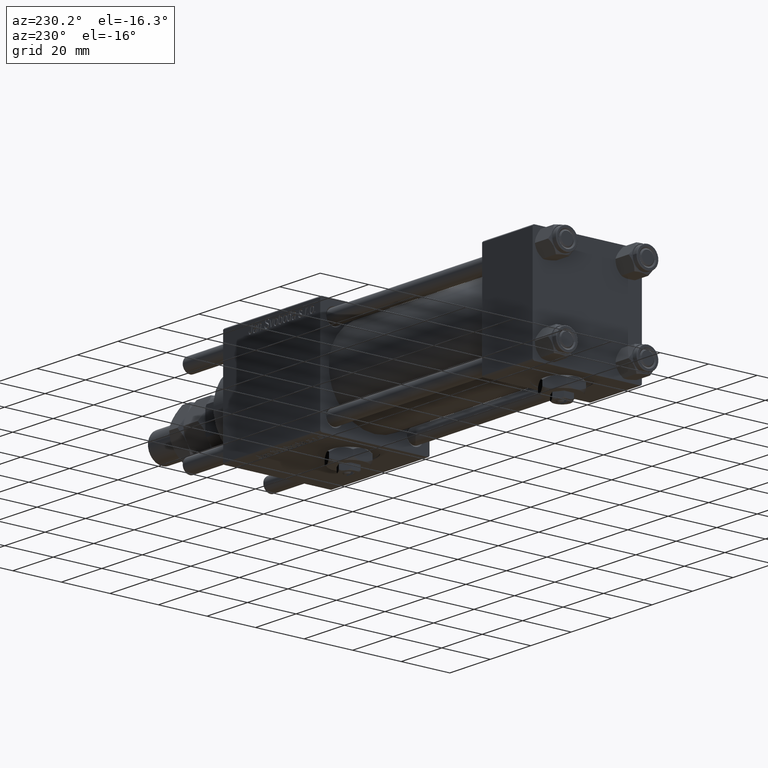
[diagram: clean part render]
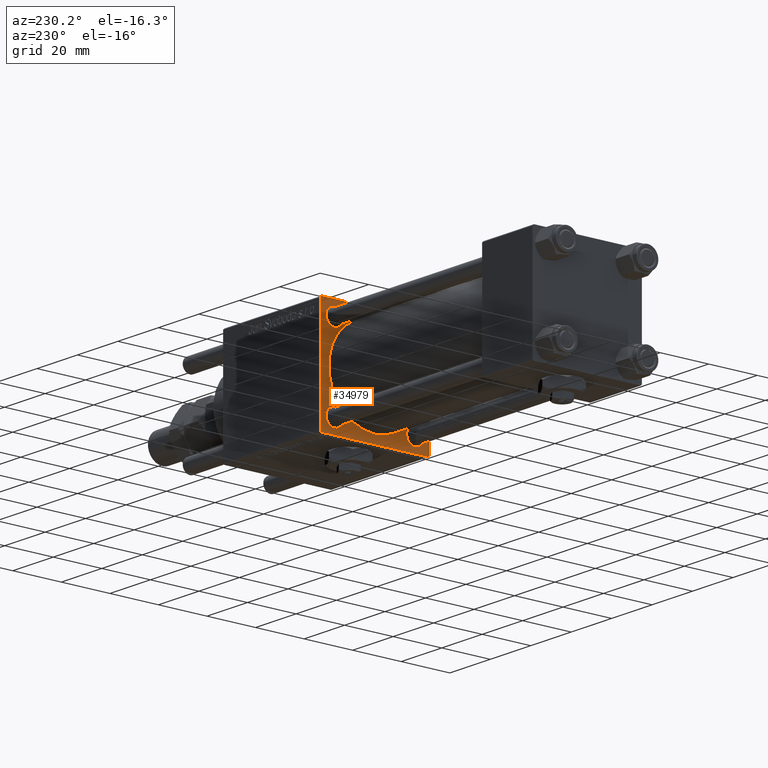
[diagram: same view with one face highlighted and labeled with its STEP entity id]
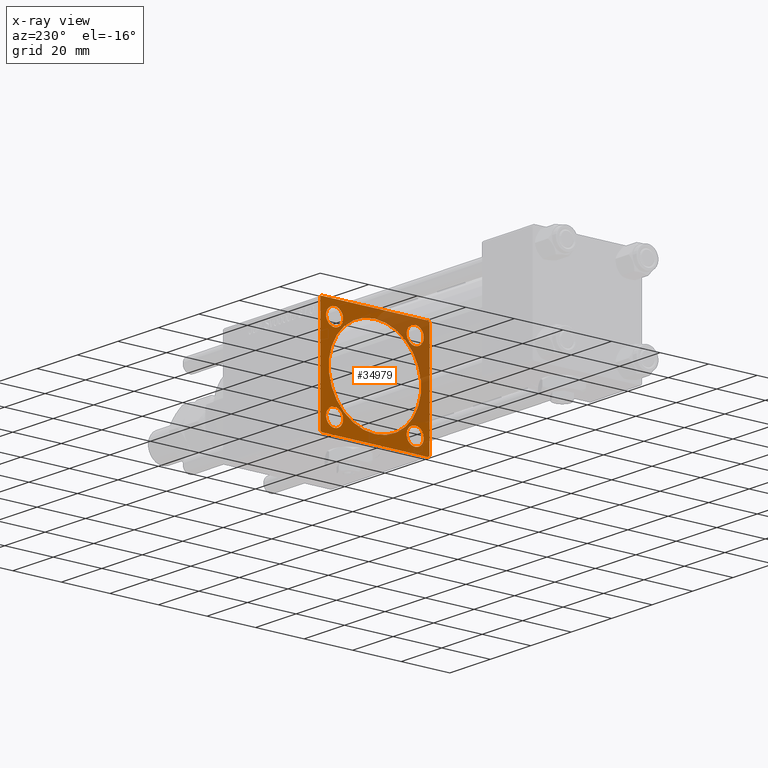
[diagram: x-ray of the same camera — body ghosted, the highlighted face saturated]
A machine part, auxiliary view. The second image highlights one B-rep face of the part: STEP entity #34979.
The next image is the same camera in x-ray: the body ghosted, the highlighted face saturated — about 33% of this face is hidden behind the body in this view.
In plain terms, the highlighted planar face has unit normal (-1, 0, 0).
Its self-contained STEP definition (entity closure, byte-faithful):
#230 = FACE_BOUND ( 'NONE', #36150, .T. ) ;
#401 = AXIS2_PLACEMENT_3D ( 'NONE', #3729, #41644, #17783 ) ;
#1121 = CARTESIAN_POINT ( 'NONE',  ( 105.0000000000000142, -16.59999999999999076, 20.09999999999999787 ) ) ;
#1611 = CARTESIAN_POINT ( 'NONE',  ( 105.0000000000000142, 22.25000000000000355, 22.25000000000000355 ) ) ;
#1764 = AXIS2_PLACEMENT_3D ( 'NONE', #45279, #16274, #40693 ) ;
#2062 = ORIENTED_EDGE ( 'NONE', *, *, #53597, .T. ) ;
#2164 = EDGE_CURVE ( 'NONE', #14887, #4699, #18912, .T. ) ;
#2187 = DIRECTION ( 'NONE',  ( 1.000000000000000000, -0.000000000000000000, 0.000000000000000000 ) ) ;
#3115 = DIRECTION ( 'NONE',  ( 1.000000000000000000, -0.000000000000000000, 0.000000000000000000 ) ) ;
#3441 = AXIS2_PLACEMENT_3D ( 'NONE', #18792, #9331, #56054 ) ;
#3628 = DIRECTION ( 'NONE',  ( 0.000000000000000000, -1.000000000000000000, -2.312964634635742957E-16 ) ) ;
#3729 = CARTESIAN_POINT ( 'NONE',  ( 105.0000000000000142, 16.59999999999999787, -16.60000000000000497 ) ) ;
#4204 = EDGE_CURVE ( 'NONE', #15000, #7078, #12543, .T. ) ;
#4699 = VERTEX_POINT ( 'NONE', #57054 ) ;
#4721 = LINE ( 'NONE', #47199, #18378 ) ;
#4758 = CARTESIAN_POINT ( 'NONE',  ( 105.0000000000000142, -2.602085213965210642E-15, 0.000000000000000000 ) ) ;
#5075 = AXIS2_PLACEMENT_3D ( 'NONE', #48017, #14724, #33360 ) ;
#5121 = FACE_BOUND ( 'NONE', #18125, .T. ) ;
#5677 = EDGE_CURVE ( 'NONE', #58408, #27931, #35045, .T. ) ;
#5696 = VECTOR ( 'NONE', #47310, 1000.000000000000000 ) ;
#5763 = CARTESIAN_POINT ( 'NONE',  ( 105.0000000000000142, -21.99999999999998224, -22.50000000000000000 ) ) ;
#6844 = CARTESIAN_POINT ( 'NONE',  ( 105.0000000000000142, 21.99999999999998934, -22.49999999999999645 ) ) ;
#6932 = DIRECTION ( 'NONE',  ( 0.000000000000000000, 0.000000000000000000, -1.000000000000000000 ) ) ;
#6991 = CIRCLE ( 'NONE', #41149, 3.500000000000058620 ) ;
#7011 = VERTEX_POINT ( 'NONE', #1121 ) ;
#7078 = VERTEX_POINT ( 'NONE', #52140 ) ;
#7395 = CARTESIAN_POINT ( 'NONE',  ( 105.0000000000000142, 22.50000000000000355, -22.49999999999999645 ) ) ;
#8865 = CARTESIAN_POINT ( 'NONE',  ( 105.0000000000000142, -22.49999999999999645, -21.99999999999997868 ) ) ;
#9331 = DIRECTION ( 'NONE',  ( 1.000000000000000000, -0.000000000000000000, 0.000000000000000000 ) ) ;
#9756 = CARTESIAN_POINT ( 'NONE',  ( 105.0000000000000142, 22.25000000000029843, -22.24999999999968026 ) ) ;
#10075 = CARTESIAN_POINT ( 'NONE',  ( 105.0000000000000142, -16.59999999999999076, -13.09999999999994813 ) ) ;
#10179 = CIRCLE ( 'NONE', #401, 3.500000000000058620 ) ;
#10852 = ORIENTED_EDGE ( 'NONE', *, *, #57070, .F. ) ;
#11512 = VECTOR ( 'NONE', #34901, 1000.000000000000000 ) ;
#12125 = CIRCLE ( 'NONE', #56019, 3.500000000000058620 ) ;
#12543 = CIRCLE ( 'NONE', #22234, 3.499999999999989342 ) ;
#13312 = EDGE_CURVE ( 'NONE', #51756, #27921, #6991, .T. ) ;
#14236 = DIRECTION ( 'NONE',  ( 1.000000000000000000, 0.000000000000000000, 0.000000000000000000 ) ) ;
#14289 = FACE_BOUND ( 'NONE', #31158, .T. ) ;
#14371 = EDGE_CURVE ( 'NONE', #27931, #58408, #55779, .T. ) ;
#14601 = CARTESIAN_POINT ( 'NONE',  ( 105.0000000000000142, 0.000000000000000000, 0.000000000000000000 ) ) ;
#14724 = DIRECTION ( 'NONE',  ( 1.000000000000000000, 0.000000000000000000, 0.000000000000000000 ) ) ;
#14887 = VERTEX_POINT ( 'NONE', #23599 ) ;
#15000 = VERTEX_POINT ( 'NONE', #33085 ) ;
#15466 = DIRECTION ( 'NONE',  ( 0.000000000000000000, 0.000000000000000000, 1.000000000000000000 ) ) ;
#16274 = DIRECTION ( 'NONE',  ( 1.000000000000000000, -0.000000000000000000, 0.000000000000000000 ) ) ;
#17304 = VERTEX_POINT ( 'NONE', #10075 ) ;
#17753 = CARTESIAN_POINT ( 'NONE',  ( 105.0000000000000142, 16.59999999999999787, -13.09999999999994458 ) ) ;
#17783 = DIRECTION ( 'NONE',  ( 0.000000000000000000, 0.000000000000000000, 1.000000000000000000 ) ) ;
#18125 = EDGE_LOOP ( 'NONE', ( #40691, #35951 ) ) ;
#18295 = CARTESIAN_POINT ( 'NONE',  ( 105.0000000000000142, 22.50000000000000355, 22.50000000000000355 ) ) ;
#18378 = VECTOR ( 'NONE', #19973, 999.9999999999998863 ) ;
#18792 = CARTESIAN_POINT ( 'NONE',  ( 105.0000000000000142, -16.59999999999999076, 16.60000000000000853 ) ) ;
#18830 = CARTESIAN_POINT ( 'NONE',  ( 105.0000000000000142, -16.59999999999999076, -16.60000000000000853 ) ) ;
#18912 = LINE ( 'NONE', #41552, #55384 ) ;
#19479 = CARTESIAN_POINT ( 'NONE',  ( 105.0000000000000142, -22.49999999999999645, 22.49999999999999289 ) ) ;
#19973 = DIRECTION ( 'NONE',  ( 0.000000000000000000, -0.7071067811865425767, 0.7071067811865525687 ) ) ;
#20369 = EDGE_CURVE ( 'NONE', #42974, #36668, #51593, .T. ) ;
#20390 = VERTEX_POINT ( 'NONE', #39068 ) ;
#20975 = VECTOR ( 'NONE', #3628, 1000.000000000000000 ) ;
#21233 = ORIENTED_EDGE ( 'NONE', *, *, #51694, .T. ) ;
#21243 = ORIENTED_EDGE ( 'NONE', *, *, #51685, .T. ) ;
#21275 = CARTESIAN_POINT ( 'NONE',  ( 105.0000000000000142, 22.50000000000000355, 22.50000000000000355 ) ) ;
#22234 = AXIS2_PLACEMENT_3D ( 'NONE', #29179, #37440, #57274 ) ;
#22259 = LINE ( 'NONE', #18295, #20975 ) ;
#22878 = DIRECTION ( 'NONE',  ( -0.000000000000000000, 0.7071067811865378028, 0.7071067811865573427 ) ) ;
#22884 = ORIENTED_EDGE ( 'NONE', *, *, #27108, .F. ) ;
#23451 = FACE_BOUND ( 'NONE', #56147, .T. ) ;
#23599 = CARTESIAN_POINT ( 'NONE',  ( 105.0000000000000142, -22.49999999999999645, 21.99999999999999289 ) ) ;
#23754 = ORIENTED_EDGE ( 'NONE', *, *, #42517, .T. ) ;
#23992 = ORIENTED_EDGE ( 'NONE', *, *, #26029, .T. ) ;
#24787 = EDGE_CURVE ( 'NONE', #27921, #51756, #10179, .T. ) ;
#25105 = VECTOR ( 'NONE', #6932, 1000.000000000000000 ) ;
#25352 = EDGE_LOOP ( 'NONE', ( #26279, #50054 ) ) ;
#26029 = EDGE_CURVE ( 'NONE', #34321, #49630, #49547, .T. ) ;
#26030 = LINE ( 'NONE', #7395, #11512 ) ;
#26143 = CIRCLE ( 'NONE', #1764, 3.500000000000058620 ) ;
#26279 = ORIENTED_EDGE ( 'NONE', *, *, #29735, .T. ) ;
#26823 = CARTESIAN_POINT ( 'NONE',  ( 105.0000000000000142, -2.752562955852396712E-16, -19.00000000000000000 ) ) ;
#27108 = EDGE_CURVE ( 'NONE', #34321, #4699, #22259, .T. ) ;
#27276 = VERTEX_POINT ( 'NONE', #5763 ) ;
#27921 = VERTEX_POINT ( 'NONE', #45487 ) ;
#27931 = VERTEX_POINT ( 'NONE', #26823 ) ;
#28166 = ORIENTED_EDGE ( 'NONE', *, *, #51059, .T. ) ;
#28390 = DIRECTION ( 'NONE',  ( -0.000000000000000000, -0.7071067811865376918, -0.7071067811865574537 ) ) ;
#28828 = CARTESIAN_POINT ( 'NONE',  ( 105.0000000000000142, -2.602085213965210642E-15, 19.00000000000000000 ) ) ;
#29071 = ORIENTED_EDGE ( 'NONE', *, *, #20369, .T. ) ;
#29179 = CARTESIAN_POINT ( 'NONE',  ( 105.0000000000000142, 16.59999999999999787, 16.60000000000000497 ) ) ;
#29560 = LINE ( 'NONE', #19479, #5696 ) ;
#29735 = EDGE_CURVE ( 'NONE', #7011, #20390, #48342, .T. ) ;
#30326 = DIRECTION ( 'NONE',  ( 0.000000000000000000, 0.7071067811865474617, -0.7071067811865474617 ) ) ;
#30340 = DIRECTION ( 'NONE',  ( 0.000000000000000000, 0.000000000000000000, 1.000000000000000000 ) ) ;
#31158 = EDGE_LOOP ( 'NONE', ( #21243, #23754 ) ) ;
#31596 = CIRCLE ( 'NONE', #32569, 3.499999999999989342 ) ;
#31728 = EDGE_CURVE ( 'NONE', #20390, #7011, #36724, .T. ) ;
#32073 = DIRECTION ( 'NONE',  ( 0.000000000000000000, 0.000000000000000000, 1.000000000000000000 ) ) ;
#32569 = AXIS2_PLACEMENT_3D ( 'NONE', #50102, #35460, #32073 ) ;
#32933 = PLANE ( 'NONE',  #39340 ) ;
#33085 = CARTESIAN_POINT ( 'NONE',  ( 105.0000000000000142, 16.59999999999999787, 20.09999999999999432 ) ) ;
#33239 = DIRECTION ( 'NONE',  ( -0.000000000000000000, 0.000000000000000000, 1.000000000000000000 ) ) ;
#33360 = DIRECTION ( 'NONE',  ( 0.000000000000000000, 0.000000000000000000, -1.000000000000000000 ) ) ;
#34321 = VERTEX_POINT ( 'NONE', #50486 ) ;
#34735 = VERTEX_POINT ( 'NONE', #8865 ) ;
#34765 = AXIS2_PLACEMENT_3D ( 'NONE', #58397, #2187, #58986 ) ;
#34901 = DIRECTION ( 'NONE',  ( 0.000000000000000000, -1.000000000000000000, -7.709882115452476934E-17 ) ) ;
#34979 = ADVANCED_FACE ( 'NONE', ( #37516, #5121, #230, #14289, #23451, #37818 ), #32933, .T. ) ;
#35045 = CIRCLE ( 'NONE', #37979, 19.00000000000000000 ) ;
#35460 = DIRECTION ( 'NONE',  ( 1.000000000000000000, -0.000000000000000000, 0.000000000000000000 ) ) ;
#35951 = ORIENTED_EDGE ( 'NONE', *, *, #40330, .T. ) ;
#36150 = EDGE_LOOP ( 'NONE', ( #59241, #58547 ) ) ;
#36668 = VERTEX_POINT ( 'NONE', #6844 ) ;
#36724 = CIRCLE ( 'NONE', #34765, 3.499999999999989342 ) ;
#37440 = DIRECTION ( 'NONE',  ( 1.000000000000000000, -0.000000000000000000, 0.000000000000000000 ) ) ;
#37516 = FACE_BOUND ( 'NONE', #25352, .T. ) ;
#37818 = FACE_OUTER_BOUND ( 'NONE', #41469, .T. ) ;
#37979 = AXIS2_PLACEMENT_3D ( 'NONE', #4758, #14236, #51498 ) ;
#39068 = CARTESIAN_POINT ( 'NONE',  ( 105.0000000000000142, -16.59999999999999076, 13.10000000000001741 ) ) ;
#39340 = AXIS2_PLACEMENT_3D ( 'NONE', #14601, #42418, #33239 ) ;
#40330 = EDGE_CURVE ( 'NONE', #7078, #15000, #31596, .T. ) ;
#40450 = VECTOR ( 'NONE', #30326, 1000.000000000000114 ) ;
#40691 = ORIENTED_EDGE ( 'NONE', *, *, #4204, .T. ) ;
#40693 = DIRECTION ( 'NONE',  ( 0.000000000000000000, 0.000000000000000000, 1.000000000000000000 ) ) ;
#41149 = AXIS2_PLACEMENT_3D ( 'NONE', #54134, #3115, #30340 ) ;
#41384 = ORIENTED_EDGE ( 'NONE', *, *, #2164, .T. ) ;
#41469 = EDGE_LOOP ( 'NONE', ( #21233, #2062, #10852, #41384, #22884, #23992, #28166, #29071 ) ) ;
#41552 = CARTESIAN_POINT ( 'NONE',  ( 105.0000000000000142, -22.25000000000030909, 22.24999999999969447 ) ) ;
#41644 = DIRECTION ( 'NONE',  ( 1.000000000000000000, -0.000000000000000000, 0.000000000000000000 ) ) ;
#42418 = DIRECTION ( 'NONE',  ( -1.000000000000000000, 0.000000000000000000, -0.000000000000000000 ) ) ;
#42517 = EDGE_CURVE ( 'NONE', #52520, #17304, #12125, .T. ) ;
#42974 = VERTEX_POINT ( 'NONE', #45825 ) ;
#45279 = CARTESIAN_POINT ( 'NONE',  ( 105.0000000000000142, -16.59999999999999076, -16.60000000000000853 ) ) ;
#45487 = CARTESIAN_POINT ( 'NONE',  ( 105.0000000000000142, 16.59999999999999787, -20.10000000000006182 ) ) ;
#45825 = CARTESIAN_POINT ( 'NONE',  ( 105.0000000000000142, 22.50000000000000355, -21.99999999999995381 ) ) ;
#47199 = CARTESIAN_POINT ( 'NONE',  ( 105.0000000000000142, -22.25000000000015277, -22.24999999999984013 ) ) ;
#47310 = DIRECTION ( 'NONE',  ( 0.000000000000000000, 0.000000000000000000, -1.000000000000000000 ) ) ;
#47855 = CARTESIAN_POINT ( 'NONE',  ( 105.0000000000000142, -16.59999999999999076, -20.10000000000006537 ) ) ;
#48017 = CARTESIAN_POINT ( 'NONE',  ( 105.0000000000000142, -2.602085213965210642E-15, 0.000000000000000000 ) ) ;
#48342 = CIRCLE ( 'NONE', #3441, 3.499999999999989342 ) ;
#49389 = LINE ( 'NONE', #21275, #25105 ) ;
#49547 = LINE ( 'NONE', #1611, #40450 ) ;
#49630 = VERTEX_POINT ( 'NONE', #53878 ) ;
#49714 = ORIENTED_EDGE ( 'NONE', *, *, #14371, .T. ) ;
#50054 = ORIENTED_EDGE ( 'NONE', *, *, #31728, .T. ) ;
#50102 = CARTESIAN_POINT ( 'NONE',  ( 105.0000000000000142, 16.59999999999999787, 16.60000000000000497 ) ) ;
#50486 = CARTESIAN_POINT ( 'NONE',  ( 105.0000000000000142, 22.00000000000000355, 22.50000000000000355 ) ) ;
#51059 = EDGE_CURVE ( 'NONE', #49630, #42974, #49389, .T. ) ;
#51498 = DIRECTION ( 'NONE',  ( 0.000000000000000000, 0.000000000000000000, -1.000000000000000000 ) ) ;
#51593 = LINE ( 'NONE', #9756, #53900 ) ;
#51685 = EDGE_CURVE ( 'NONE', #17304, #52520, #26143, .T. ) ;
#51694 = EDGE_CURVE ( 'NONE', #36668, #27276, #26030, .T. ) ;
#51756 = VERTEX_POINT ( 'NONE', #17753 ) ;
#52140 = CARTESIAN_POINT ( 'NONE',  ( 105.0000000000000142, 16.59999999999999787, 13.10000000000001386 ) ) ;
#52520 = VERTEX_POINT ( 'NONE', #47855 ) ;
#53597 = EDGE_CURVE ( 'NONE', #27276, #34735, #4721, .T. ) ;
#53878 = CARTESIAN_POINT ( 'NONE',  ( 105.0000000000000142, 22.50000000000000355, 22.00000000000000355 ) ) ;
#53900 = VECTOR ( 'NONE', #28390, 999.9999999999998863 ) ;
#54134 = CARTESIAN_POINT ( 'NONE',  ( 105.0000000000000142, 16.59999999999999787, -16.60000000000000497 ) ) ;
#55384 = VECTOR ( 'NONE', #22878, 1000.000000000000000 ) ;
#55779 = CIRCLE ( 'NONE', #5075, 19.00000000000000000 ) ;
#56019 = AXIS2_PLACEMENT_3D ( 'NONE', #18830, #57012, #15466 ) ;
#56054 = DIRECTION ( 'NONE',  ( 0.000000000000000000, 0.000000000000000000, 1.000000000000000000 ) ) ;
#56147 = EDGE_LOOP ( 'NONE', ( #59754, #49714 ) ) ;
#57012 = DIRECTION ( 'NONE',  ( 1.000000000000000000, -0.000000000000000000, 0.000000000000000000 ) ) ;
#57054 = CARTESIAN_POINT ( 'NONE',  ( 105.0000000000000142, -21.99999999999999645, 22.49999999999999289 ) ) ;
#57070 = EDGE_CURVE ( 'NONE', #14887, #34735, #29560, .T. ) ;
#57274 = DIRECTION ( 'NONE',  ( 0.000000000000000000, 0.000000000000000000, 1.000000000000000000 ) ) ;
#58397 = CARTESIAN_POINT ( 'NONE',  ( 105.0000000000000142, -16.59999999999999076, 16.60000000000000853 ) ) ;
#58408 = VERTEX_POINT ( 'NONE', #28828 ) ;
#58547 = ORIENTED_EDGE ( 'NONE', *, *, #24787, .T. ) ;
#58986 = DIRECTION ( 'NONE',  ( 0.000000000000000000, 0.000000000000000000, 1.000000000000000000 ) ) ;
#59241 = ORIENTED_EDGE ( 'NONE', *, *, #13312, .T. ) ;
#59754 = ORIENTED_EDGE ( 'NONE', *, *, #5677, .T. ) ;